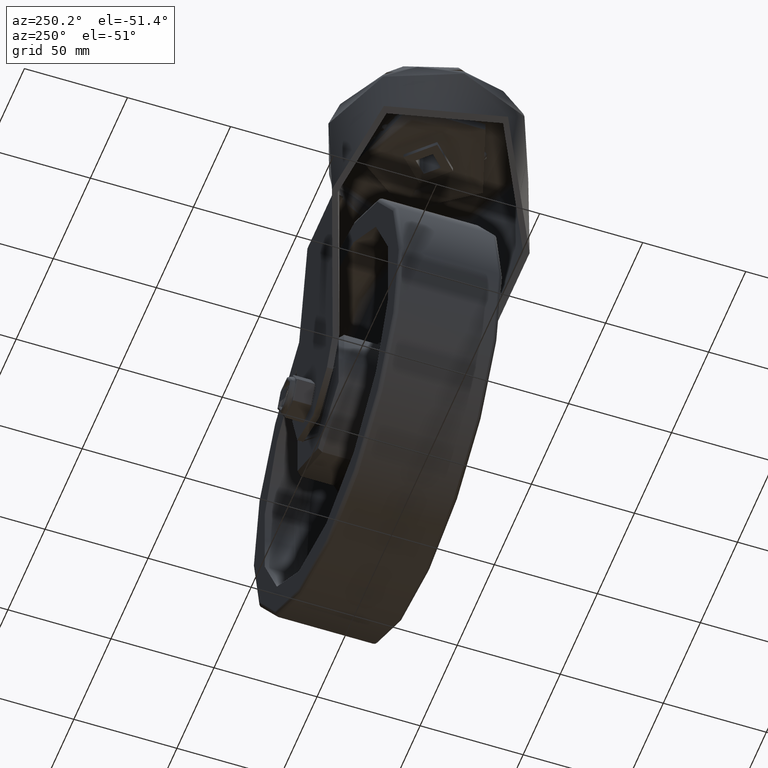
[diagram: clean part render]
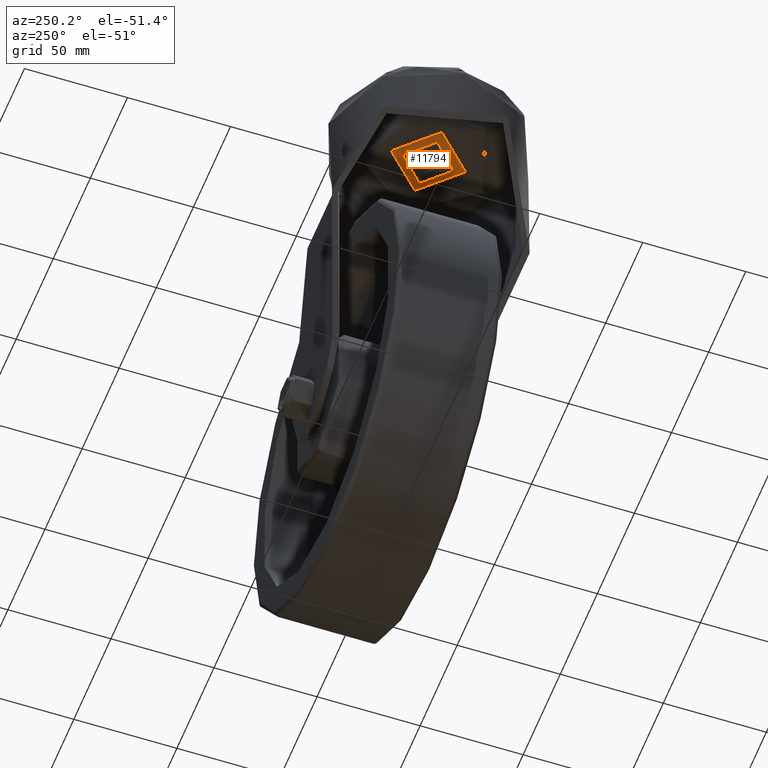
[diagram: same view with one face highlighted and labeled with its STEP entity id]
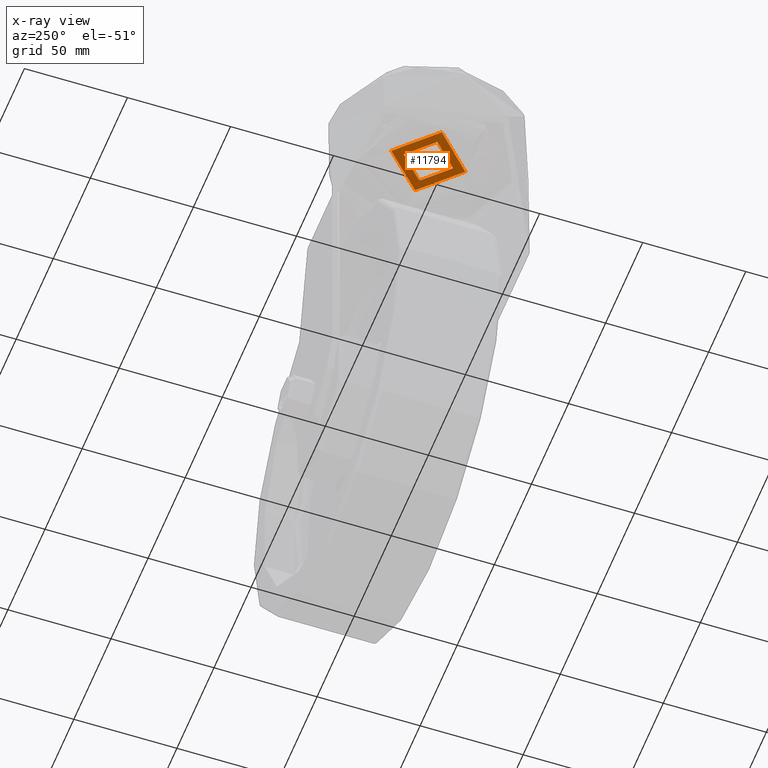
[diagram: x-ray of the same camera — body ghosted, the highlighted face saturated]
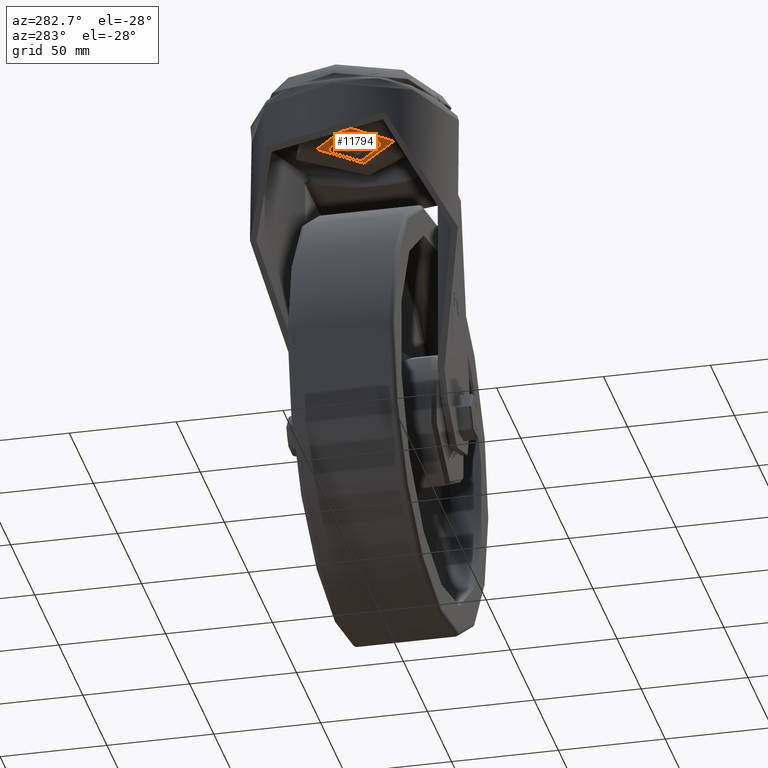
[diagram: same view with one face highlighted and labeled with its STEP entity id]
A machine part, auxiliary view. The second image highlights one B-rep face of the part: STEP entity #11794.
The next image is the same camera in x-ray: the body ghosted, the highlighted face saturated — about 0% of this face is hidden behind the body in this view.
A second angle (auxiliary view) of the same face is appended — the face is thin or edge-on in the first view.
In plain terms, the highlighted planar face has unit normal (-0, 0, -1).
Its self-contained STEP definition (entity closure, byte-faithful):
#1380=FACE_BOUND('',#3093,.T.);
#1620=PLANE('',#12929);
#2286=FACE_OUTER_BOUND('',#3092,.T.);
#3092=EDGE_LOOP('',(#10670));
#3093=EDGE_LOOP('',(#10671));
#4963=CIRCLE('',#12907,12.);
#4964=CIRCLE('',#12909,18.);
#5978=VERTEX_POINT('',#27359);
#5979=VERTEX_POINT('',#27363);
#7554=EDGE_CURVE('',#5978,#5978,#4963,.T.);
#7555=EDGE_CURVE('',#5979,#5979,#4964,.T.);
#10670=ORIENTED_EDGE('',*,*,#7555,.T.);
#10671=ORIENTED_EDGE('',*,*,#7554,.F.);
#11794=ADVANCED_FACE('',(#2286,#1380),#1620,.T.);
#12907=AXIS2_PLACEMENT_3D('',#27361,#15378,#15379);
#12909=AXIS2_PLACEMENT_3D('',#27364,#15382,#15383);
#12929=AXIS2_PLACEMENT_3D('',#27398,#15427,#15428);
#15378=DIRECTION('center_axis',(0.,0.,-1.));
#15379=DIRECTION('ref_axis',(-1.,0.,0.));
#15382=DIRECTION('center_axis',(0.,0.,-1.));
#15383=DIRECTION('ref_axis',(-1.,0.,0.));
#15427=DIRECTION('center_axis',(-2.89120579329468E-16,0.,-1.));
#15428=DIRECTION('ref_axis',(-1.,0.,2.89120579329468E-16));
#27359=CARTESIAN_POINT('',(12.,1.46957615897682E-15,-13.));
#27361=CARTESIAN_POINT('Origin',(0.,0.,-13.));
#27363=CARTESIAN_POINT('',(18.,2.20436423846524E-15,-13.));
#27364=CARTESIAN_POINT('Origin',(0.,0.,-13.));
#27398=CARTESIAN_POINT('Origin',(-15.,0.,-13.));